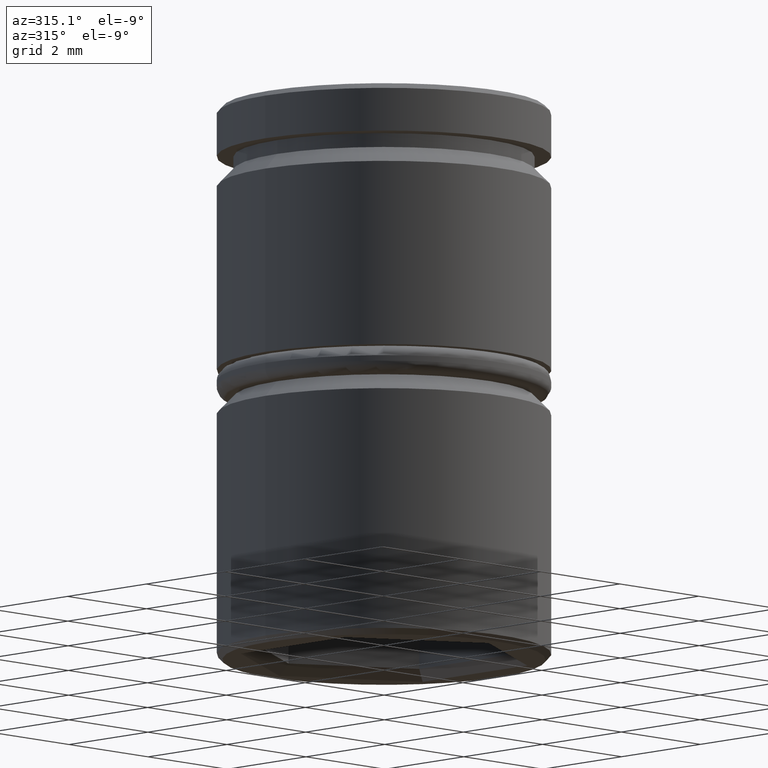
[diagram: clean part render]
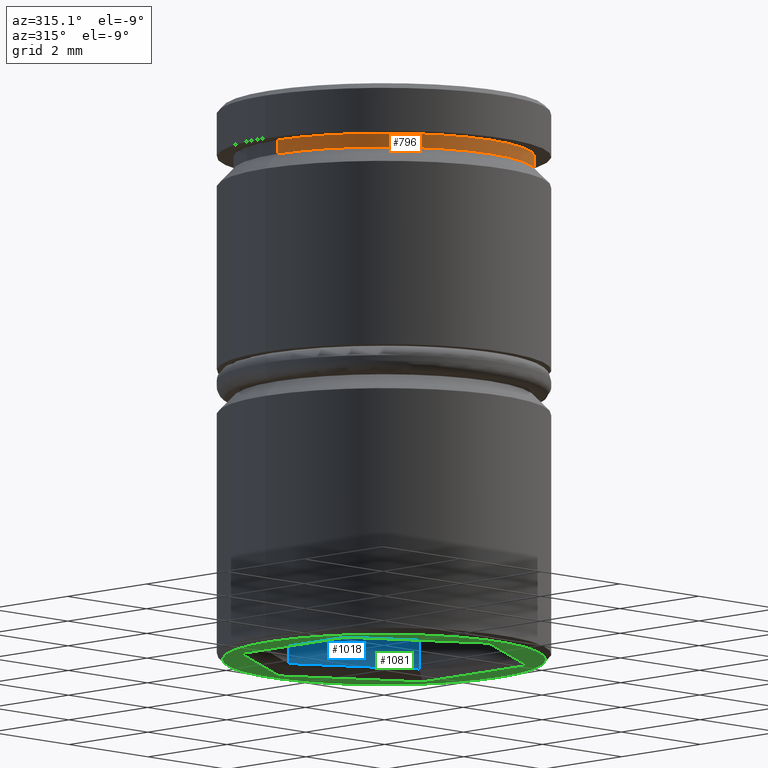
[diagram: same view with three faces highlighted in distinct colors, each labeled with its STEP entity id]
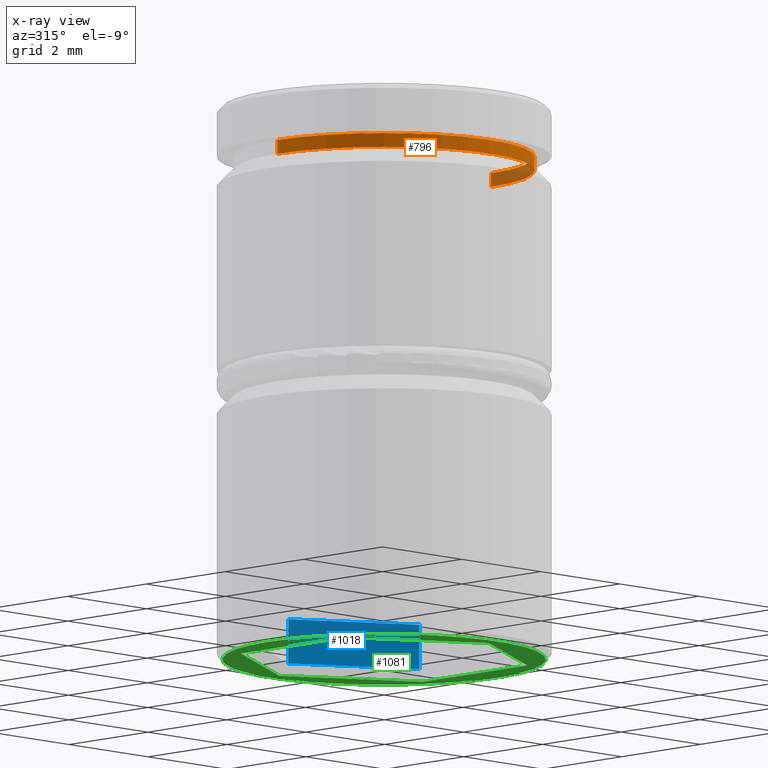
[diagram: x-ray of the same camera — body ghosted, the three highlighted faces saturated]
A machine part, auxiliary view with three faces highlighted in distinct colors.
The next image is the same camera in x-ray (body ghosted, the three faces saturated) — at least one of them is partly hidden behind the body in this view.
Their STEP definitions:

[orange] entity #796 — the highlighted cylindrical surface (partial cylindrical patch) has radius 2.7 mm, axis along (-0, -0, 1).
#80 = ORIENTED_EDGE ( 'NONE', *, *, #136, .F. ) ;
#88 = DIRECTION ( 'NONE',  ( -0.000000000000000000, -0.000000000000000000, 1.000000000000000000 ) ) ;
#136 = EDGE_CURVE ( 'NONE', #729, #247, #924, .T. ) ;
#145 = DIRECTION ( 'NONE',  ( -0.000000000000000000, -0.000000000000000000, 1.000000000000000000 ) ) ;
#154 = CIRCLE ( 'NONE', #1110, 2.700000000000000178 ) ;
#176 = CARTESIAN_POINT ( 'NONE',  ( 0.000000000000000000, 0.000000000000000000, 0.000000000000000000 ) ) ;
#236 = EDGE_CURVE ( 'NONE', #964, #340, #538, .T. ) ;
#247 = VERTEX_POINT ( 'NONE', #1015 ) ;
#260 = VECTOR ( 'NONE', #575, 1000.000000000000000 ) ;
#263 = CARTESIAN_POINT ( 'NONE',  ( 2.700000000000000178, 0.000000000000000000, 0.000000000000000000 ) ) ;
#268 = CARTESIAN_POINT ( 'NONE',  ( -2.700000000000000178, 3.306546357697853733E-16, 0.000000000000000000 ) ) ;
#340 = VERTEX_POINT ( 'NONE', #763 ) ;
#415 = ORIENTED_EDGE ( 'NONE', *, *, #814, .T. ) ;
#420 = FACE_OUTER_BOUND ( 'NONE', #865, .T. ) ;
#426 = VECTOR ( 'NONE', #88, 1000.000000000000000 ) ;
#427 = DIRECTION ( 'NONE',  ( 1.000000000000000000, 0.000000000000000000, 0.000000000000000000 ) ) ;
#438 = AXIS2_PLACEMENT_3D ( 'NONE', #176, #145, #503 ) ;
#459 = CARTESIAN_POINT ( 'NONE',  ( 0.000000000000000000, 0.000000000000000000, -1.125000000000000222 ) ) ;
#503 = DIRECTION ( 'NONE',  ( 1.000000000000000000, 0.000000000000000000, 0.000000000000000000 ) ) ;
#533 = CYLINDRICAL_SURFACE ( 'NONE', #438, 2.700000000000000178 ) ;
#538 = LINE ( 'NONE', #263, #260 ) ;
#557 = DIRECTION ( 'NONE',  ( -0.000000000000000000, -0.000000000000000000, 1.000000000000000000 ) ) ;
#575 = DIRECTION ( 'NONE',  ( -0.000000000000000000, -0.000000000000000000, 1.000000000000000000 ) ) ;
#617 = CARTESIAN_POINT ( 'NONE',  ( -2.700000000000000178, 3.306546357697853733E-16, -1.125000000000000222 ) ) ;
#729 = VERTEX_POINT ( 'NONE', #617 ) ;
#763 = CARTESIAN_POINT ( 'NONE',  ( 2.700000000000000178, 0.000000000000000000, -0.8749999999999998890 ) ) ;
#768 = CIRCLE ( 'NONE', #988, 2.700000000000000178 ) ;
#796 = ADVANCED_FACE ( 'NONE', ( #420 ), #533, .T. ) ;
#814 = EDGE_CURVE ( 'NONE', #729, #964, #154, .T. ) ;
#859 = ORIENTED_EDGE ( 'NONE', *, *, #236, .T. ) ;
#865 = EDGE_LOOP ( 'NONE', ( #80, #415, #859, #1103 ) ) ;
#909 = EDGE_CURVE ( 'NONE', #247, #340, #768, .T. ) ;
#913 = CARTESIAN_POINT ( 'NONE',  ( 2.700000000000000178, 0.000000000000000000, -1.125000000000000222 ) ) ;
#924 = LINE ( 'NONE', #268, #426 ) ;
#964 = VERTEX_POINT ( 'NONE', #913 ) ;
#988 = AXIS2_PLACEMENT_3D ( 'NONE', #1093, #996, #427 ) ;
#996 = DIRECTION ( 'NONE',  ( -0.000000000000000000, -0.000000000000000000, 1.000000000000000000 ) ) ;
#1015 = CARTESIAN_POINT ( 'NONE',  ( -2.700000000000000178, 3.306546357697853733E-16, -0.8749999999999998890 ) ) ;
#1093 = CARTESIAN_POINT ( 'NONE',  ( 0.000000000000000000, 0.000000000000000000, -0.8749999999999998890 ) ) ;
#1103 = ORIENTED_EDGE ( 'NONE', *, *, #909, .F. ) ;
#1110 = AXIS2_PLACEMENT_3D ( 'NONE', #459, #557, #1111 ) ;
#1111 = DIRECTION ( 'NONE',  ( 1.000000000000000000, 0.000000000000000000, 0.000000000000000000 ) ) ;

[blue] entity #1018 — the highlighted planar face has unit normal (0.5, 0.866, -0).
#51 = ORIENTED_EDGE ( 'NONE', *, *, #219, .F. ) ;
#78 = EDGE_CURVE ( 'NONE', #595, #262, #357, .T. ) ;
#84 = LINE ( 'NONE', #738, #1140 ) ;
#90 = CARTESIAN_POINT ( 'NONE',  ( 2.100000000000000977, 1.212435565298214390, -9.799999999999997158 ) ) ;
#183 = CARTESIAN_POINT ( 'NONE',  ( 0.000000000000000000, 2.424871130596428781, -9.799999999999997158 ) ) ;
#219 = EDGE_CURVE ( 'NONE', #262, #872, #84, .T. ) ;
#238 = ORIENTED_EDGE ( 'NONE', *, *, #349, .T. ) ;
#239 = VECTOR ( 'NONE', #950, 1000.000000000000000 ) ;
#261 = ORIENTED_EDGE ( 'NONE', *, *, #326, .T. ) ;
#262 = VERTEX_POINT ( 'NONE', #286 ) ;
#286 = CARTESIAN_POINT ( 'NONE',  ( 2.100000000000000977, 1.212435565298214390, -9.000000000000001776 ) ) ;
#321 = FACE_OUTER_BOUND ( 'NONE', #353, .T. ) ;
#326 = EDGE_CURVE ( 'NONE', #595, #902, #590, .T. ) ;
#349 = EDGE_CURVE ( 'NONE', #902, #872, #1134, .T. ) ;
#353 = EDGE_LOOP ( 'NONE', ( #261, #238, #51, #676 ) ) ;
#357 = LINE ( 'NONE', #739, #977 ) ;
#418 = VECTOR ( 'NONE', #1139, 1000.000000000000000 ) ;
#475 = CARTESIAN_POINT ( 'NONE',  ( 0.000000000000000000, 2.424871130596428781, -9.000000000000001776 ) ) ;
#590 = LINE ( 'NONE', #475, #239 ) ;
#595 = VERTEX_POINT ( 'NONE', #1002 ) ;
#676 = ORIENTED_EDGE ( 'NONE', *, *, #78, .F. ) ;
#705 = CARTESIAN_POINT ( 'NONE',  ( 0.000000000000000000, 2.424871130596428781, -9.000000000000001776 ) ) ;
#738 = CARTESIAN_POINT ( 'NONE',  ( 2.100000000000000977, 1.212435565298214390, -9.000000000000001776 ) ) ;
#739 = CARTESIAN_POINT ( 'NONE',  ( 0.000000000000000000, 2.424871130596428781, -9.000000000000001776 ) ) ;
#743 = DIRECTION ( 'NONE',  ( -0.000000000000000000, -0.000000000000000000, -1.000000000000000000 ) ) ;
#872 = VERTEX_POINT ( 'NONE', #90 ) ;
#902 = VERTEX_POINT ( 'NONE', #183 ) ;
#904 = AXIS2_PLACEMENT_3D ( 'NONE', #705, #968, #1059 ) ;
#950 = DIRECTION ( 'NONE',  ( -0.000000000000000000, -0.000000000000000000, -1.000000000000000000 ) ) ;
#968 = DIRECTION ( 'NONE',  ( 0.4999999999999998890, 0.8660254037844387076, -0.000000000000000000 ) ) ;
#977 = VECTOR ( 'NONE', #1011, 1000.000000000000000 ) ;
#1002 = CARTESIAN_POINT ( 'NONE',  ( 0.000000000000000000, 2.424871130596428781, -9.000000000000001776 ) ) ;
#1011 = DIRECTION ( 'NONE',  ( 0.8660254037844387076, -0.4999999999999998890, 0.000000000000000000 ) ) ;
#1018 = ADVANCED_FACE ( 'NONE', ( #321 ), #1053, .F. ) ;
#1033 = CARTESIAN_POINT ( 'NONE',  ( 2.100000000000000977, 1.212435565298214390, -9.799999999999997158 ) ) ;
#1053 = PLANE ( 'NONE',  #904 ) ;
#1059 = DIRECTION ( 'NONE',  ( -0.8660254037844387076, 0.4999999999999998890, 0.000000000000000000 ) ) ;
#1134 = LINE ( 'NONE', #1033, #418 ) ;
#1139 = DIRECTION ( 'NONE',  ( 0.8660254037844387076, -0.4999999999999998890, 0.000000000000000000 ) ) ;
#1140 = VECTOR ( 'NONE', #743, 1000.000000000000000 ) ;

[green] entity #1081 — the highlighted planar face has unit normal (0, 0, -1).
#16 = FACE_BOUND ( 'NONE', #431, .T. ) ;
#22 = VERTEX_POINT ( 'NONE', #960 ) ;
#29 = VECTOR ( 'NONE', #1102, 1000.000000000000114 ) ;
#31 = DIRECTION ( 'NONE',  ( -0.000000000000000000, 1.000000000000000000, 0.000000000000000000 ) ) ;
#61 = EDGE_CURVE ( 'NONE', #202, #1128, #648, .T. ) ;
#63 = ORIENTED_EDGE ( 'NONE', *, *, #1094, .T. ) ;
#68 = VERTEX_POINT ( 'NONE', #1004 ) ;
#94 = CIRCLE ( 'NONE', #769, 2.900000000000001243 ) ;
#95 = ORIENTED_EDGE ( 'NONE', *, *, #121, .T. ) ;
#117 = CARTESIAN_POINT ( 'NONE',  ( -1.168114681195981673E-15, -2.655811238272280494, -10.00000000000000000 ) ) ;
#120 = LINE ( 'NONE', #218, #402 ) ;
#121 = EDGE_CURVE ( 'NONE', #1128, #22, #543, .T. ) ;
#131 = VECTOR ( 'NONE', #31, 1000.000000000000000 ) ;
#138 = DIRECTION ( 'NONE',  ( -1.000000000000000000, 0.000000000000000000, 0.000000000000000000 ) ) ;
#149 = VERTEX_POINT ( 'NONE', #819 ) ;
#157 = CARTESIAN_POINT ( 'NONE',  ( -0.1000000000000008382, -2.598076211353318232, -10.00000000000000000 ) ) ;
#172 = DIRECTION ( 'NONE',  ( 0.8660254037844387076, -0.4999999999999998890, 0.000000000000000000 ) ) ;
#191 = CARTESIAN_POINT ( 'NONE',  ( -2.200000000000001510, 1.385640646055103176, -10.00000000000000000 ) ) ;
#202 = VERTEX_POINT ( 'NONE', #1123 ) ;
#218 = CARTESIAN_POINT ( 'NONE',  ( 2.200000000000001510, -1.385640646055102954, -10.00000000000000000 ) ) ;
#241 = CARTESIAN_POINT ( 'NONE',  ( 1.441772048971224487E-16, 2.655811238272279606, -10.00000000000000000 ) ) ;
#293 = LINE ( 'NONE', #770, #822 ) ;
#315 = AXIS2_PLACEMENT_3D ( 'NONE', #778, #791, #138 ) ;
#343 = DIRECTION ( 'NONE',  ( 0.8660254037844388186, 0.4999999999999997780, 0.000000000000000000 ) ) ;
#373 = DIRECTION ( 'NONE',  ( -1.000000000000000000, 0.000000000000000000, 0.000000000000000000 ) ) ;
#390 = VECTOR ( 'NONE', #833, 1000.000000000000000 ) ;
#402 = VECTOR ( 'NONE', #343, 1000.000000000000114 ) ;
#431 = EDGE_LOOP ( 'NONE', ( #63, #1165, #1119, #523, #95, #1012 ) ) ;
#447 = PLANE ( 'NONE',  #536 ) ;
#460 = DIRECTION ( 'NONE',  ( 0.000000000000000000, 0.000000000000000000, -1.000000000000000000 ) ) ;
#474 = CARTESIAN_POINT ( 'NONE',  ( 2.300000000000001599, 1.212435565298214390, -10.00000000000000000 ) ) ;
#523 = ORIENTED_EDGE ( 'NONE', *, *, #61, .T. ) ;
#536 = AXIS2_PLACEMENT_3D ( 'NONE', #1099, #558, #921 ) ;
#543 = LINE ( 'NONE', #191, #29 ) ;
#558 = DIRECTION ( 'NONE',  ( 0.000000000000000000, 0.000000000000000000, -1.000000000000000000 ) ) ;
#561 = CARTESIAN_POINT ( 'NONE',  ( 2.300000000000001599, -1.327905619136140247, -10.00000000000000000 ) ) ;
#572 = EDGE_CURVE ( 'NONE', #757, #68, #694, .T. ) ;
#648 = LINE ( 'NONE', #914, #390 ) ;
#684 = DIRECTION ( 'NONE',  ( 0.000000000000000000, -1.000000000000000000, 0.000000000000000000 ) ) ;
#685 = EDGE_CURVE ( 'NONE', #1166, #202, #1050, .T. ) ;
#694 = CIRCLE ( 'NONE', #315, 2.900000000000001243 ) ;
#695 = VECTOR ( 'NONE', #172, 1000.000000000000000 ) ;
#717 = EDGE_CURVE ( 'NONE', #1061, #1166, #120, .T. ) ;
#735 = FACE_OUTER_BOUND ( 'NONE', #1076, .T. ) ;
#757 = VERTEX_POINT ( 'NONE', #891 ) ;
#769 = AXIS2_PLACEMENT_3D ( 'NONE', #995, #460, #373 ) ;
#770 = CARTESIAN_POINT ( 'NONE',  ( -2.300000000000001599, -1.212435565298214390, -10.00000000000000000 ) ) ;
#778 = CARTESIAN_POINT ( 'NONE',  ( 0.000000000000000000, 0.000000000000000000, -10.00000000000000000 ) ) ;
#791 = DIRECTION ( 'NONE',  ( 0.000000000000000000, 0.000000000000000000, -1.000000000000000000 ) ) ;
#817 = EDGE_CURVE ( 'NONE', #22, #149, #293, .T. ) ;
#819 = CARTESIAN_POINT ( 'NONE',  ( -2.300000000000001599, -1.327905619136141135, -10.00000000000000000 ) ) ;
#822 = VECTOR ( 'NONE', #684, 1000.000000000000000 ) ;
#833 = DIRECTION ( 'NONE',  ( -0.8660254037844387076, 0.4999999999999998890, 0.000000000000000000 ) ) ;
#834 = ORIENTED_EDGE ( 'NONE', *, *, #1179, .T. ) ;
#845 = LINE ( 'NONE', #157, #695 ) ;
#891 = CARTESIAN_POINT ( 'NONE',  ( 2.900000000000001243, 0.000000000000000000, -10.00000000000000000 ) ) ;
#914 = CARTESIAN_POINT ( 'NONE',  ( 0.1000000000000002276, 2.598076211353317344, -10.00000000000000000 ) ) ;
#921 = DIRECTION ( 'NONE',  ( -1.000000000000000000, 0.000000000000000000, -0.000000000000000000 ) ) ;
#960 = CARTESIAN_POINT ( 'NONE',  ( -2.300000000000001599, 1.327905619136140469, -10.00000000000000000 ) ) ;
#995 = CARTESIAN_POINT ( 'NONE',  ( 0.000000000000000000, 0.000000000000000000, -10.00000000000000000 ) ) ;
#1004 = CARTESIAN_POINT ( 'NONE',  ( -2.900000000000001243, 3.612708057484692590E-16, -10.00000000000000000 ) ) ;
#1012 = ORIENTED_EDGE ( 'NONE', *, *, #817, .T. ) ;
#1050 = LINE ( 'NONE', #474, #131 ) ;
#1061 = VERTEX_POINT ( 'NONE', #117 ) ;
#1076 = EDGE_LOOP ( 'NONE', ( #1083, #834 ) ) ;
#1081 = ADVANCED_FACE ( 'NONE', ( #16, #735 ), #447, .T. ) ;
#1083 = ORIENTED_EDGE ( 'NONE', *, *, #572, .T. ) ;
#1094 = EDGE_CURVE ( 'NONE', #149, #1061, #845, .T. ) ;
#1099 = CARTESIAN_POINT ( 'NONE',  ( 0.000000000000000000, 3.000000000000000000, -10.00000000000000000 ) ) ;
#1102 = DIRECTION ( 'NONE',  ( -0.8660254037844388186, -0.4999999999999997780, 0.000000000000000000 ) ) ;
#1119 = ORIENTED_EDGE ( 'NONE', *, *, #685, .T. ) ;
#1123 = CARTESIAN_POINT ( 'NONE',  ( 2.300000000000001599, 1.327905619136140025, -10.00000000000000000 ) ) ;
#1128 = VERTEX_POINT ( 'NONE', #241 ) ;
#1165 = ORIENTED_EDGE ( 'NONE', *, *, #717, .T. ) ;
#1166 = VERTEX_POINT ( 'NONE', #561 ) ;
#1179 = EDGE_CURVE ( 'NONE', #68, #757, #94, .T. ) ;